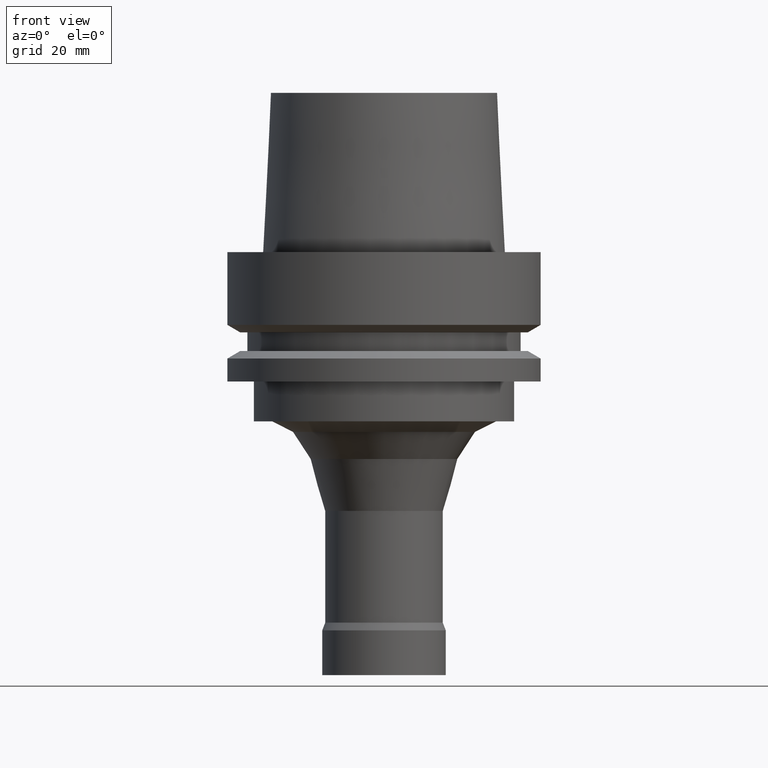
[diagram: clean part render]
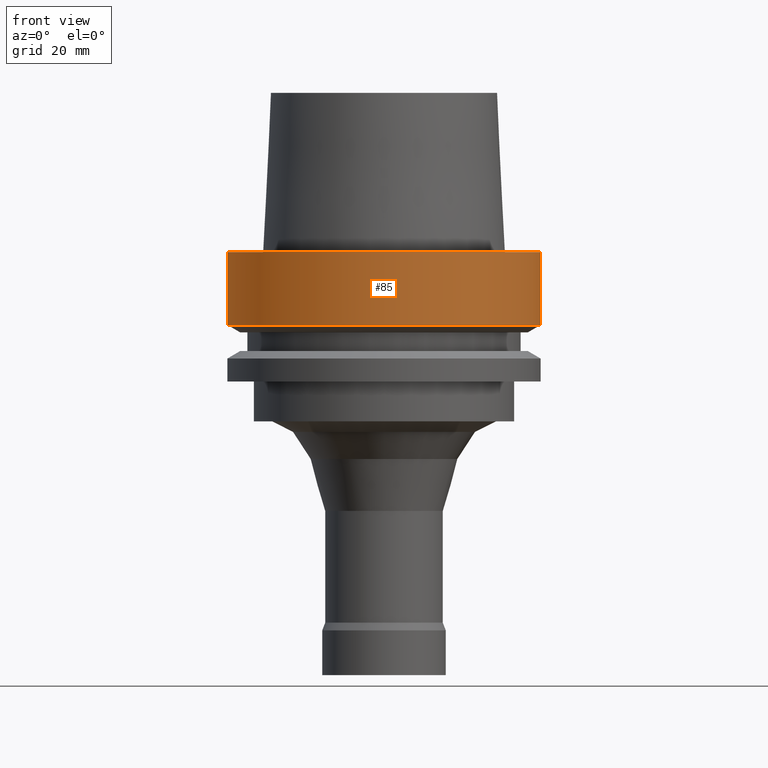
[diagram: same view with one face highlighted and labeled with its STEP entity id]
A machine part, front view. The second image highlights one B-rep face of the part: STEP entity #85.
In plain terms, the highlighted cylindrical surface (bore or boss wall) has radius 31.5 mm, axis along (-0, -0, 1).
Its self-contained STEP definition (entity closure, byte-faithful):
#85=ADVANCED_FACE('',(#125,#126),#127,.T.);
#125=FACE_BOUND('',#183,.T.);
#126=FACE_BOUND('',#184,.T.);
#127=CYLINDRICAL_SURFACE('',#185,31.5);
#183=EDGE_LOOP('',(#261));
#184=EDGE_LOOP('',(#262));
#185=AXIS2_PLACEMENT_3D('',#263,#264,#265);
#261=ORIENTED_EDGE('',*,*,#321,.F.);
#262=ORIENTED_EDGE('',*,*,#319,.T.);
#263=CARTESIAN_POINT('',(4.47684973986342E-016,8.95369947972684E-016,-7.311250465));
#264=DIRECTION('',(-6.12323399573677E-017,-1.22464679914735E-016,1.0));
#265=DIRECTION('',(-1.23259516440783E-032,1.0,1.22464679914735E-016));
#319=EDGE_CURVE('',#347,#347,#348,.T.);
#321=EDGE_CURVE('',#351,#351,#352,.T.);
#347=VERTEX_POINT('',#385);
#348=CIRCLE('',#386,31.5);
#351=VERTEX_POINT('',#389);
#352=CIRCLE('',#390,31.5);
#385=CARTESIAN_POINT('',(-3.8214424279273E-031,31.5,3.75763741731416E-015));
#386=AXIS2_PLACEMENT_3D('',#432,#433,#434);
#389=CARTESIAN_POINT('',(8.95369947972684E-016,31.5,-14.62250093));
#390=AXIS2_PLACEMENT_3D('',#438,#439,#440);
#432=CARTESIAN_POINT('',(0.0,0.0,0.0));
#433=DIRECTION('',(6.12323399573677E-017,1.22464679914735E-016,-1.0));
#434=DIRECTION('',(-1.23259516440783E-032,1.0,1.22464679914735E-016));
#438=CARTESIAN_POINT('',(8.95369947972685E-016,1.79073989594537E-015,-14.62250093));
#439=DIRECTION('',(6.12323399573677E-017,1.22464679914735E-016,-1.0));
#440=DIRECTION('',(-1.23259516440783E-032,1.0,1.22464679914735E-016));